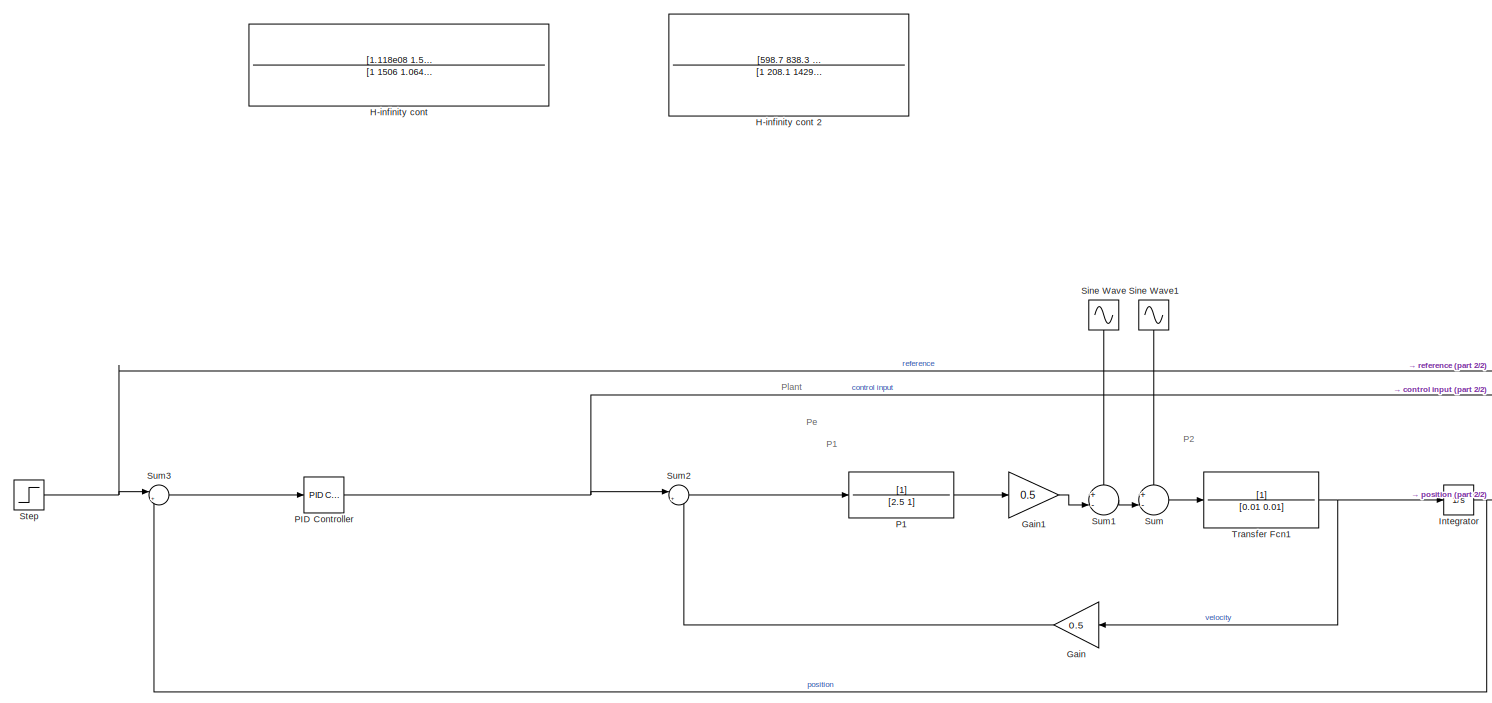
[diagram: root canvas - part 1/2, most of the canvas]
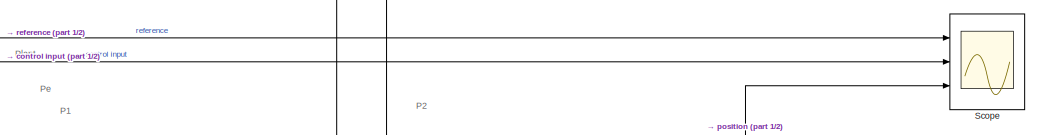
[diagram: root canvas - part 2/2, middle right region]
MODEL slx_c39e41bcf37e
KIND model
CONFIG AbsTol = auto
CONFIG EnableMultiTasking = off
CONFIG FixedStep = auto
CONFIG MaxStep = auto
CONFIG MinStep = auto
CONFIG RelTol = 1e-3
CONFIG SampleTimeConstraint = Unconstrained
CONFIG SolverName = VariableStepAuto
CONFIG StartTime = 0.0
CONFIG StopTime = 100
BLOCK [Gain] Gain
  Gain = 0.5
  NameLocation = top
BLOCK [Gain] Gain1
  Gain = 0.5
BLOCK [TransferFcn] H-infinity cont 
  Denominator = [1 1506 1.064e06 4.21e08 5.986e06]
  Numerator = [1.118e08 1.566e08 1.163e09 154.9]
BLOCK [TransferFcn] H-infinity cont 2
  Denominator = [1 208.1 1429 6410 90.86]
  Numerator = [598.7 838.3 6227 0.0008333]
BLOCK [Integrator] Integrator
  Ports = [1, 1]
BLOCK [TransferFcn] P1
  Denominator = [2.5 1]
BLOCK [Reference] PID Controller  REF=slpidlib/PID Controller
  Ports = [1, 1]
  SourceBlock = slpidlib/PID Controller
  SourceProductBaseCode = SL
  SourceType = PID 1dof
BLOCK [Scope] Scope
  Floating = off
  NumInputPorts = 3
  Ports = [3]
  ScopeSpecificationString = Simulink.scopes.TimeScopeBlockCfg('CurrentConfiguration', extmgr.ConfigurationSet(extmgr.Configuration('Core','General UI',true,'FigureColor',[0 0 0]),extmgr.Configuration('Core','Source UI',true),extmgr.Configuration('Sources','WiredSimulink',true),extmgr.Configuration('Visuals','Time Domain',true,'SerializedDisplays',{struct('MinYLimReal','-6.30649','MaxYLimReal','4.63536','YLabelReal','','MinYL...<+1975ch>
BLOCK [Sin] Sine Wave
  NameLocation = left
  Ports = [0, 1]
  SampleTime = 0
BLOCK [Sin] Sine Wave1
  NameLocation = left
  Ports = [0, 1]
  SampleTime = 0
BLOCK [Step] Step
  SampleTime = 0
BLOCK [Sum] Sum
  Inputs = +-|
  Ports = [2, 1]
BLOCK [Sum] Sum1
  Inputs = +-|
  Ports = [2, 1]
BLOCK [Sum] Sum2
  Inputs = |+-
  Ports = [2, 1]
BLOCK [Sum] Sum3
  Inputs = |+-
  Ports = [2, 1]
BLOCK [TransferFcn] Transfer Fcn1
  Denominator = [0.01 0.01]
ANNOTATION (root): P1
ANNOTATION (root): P2
ANNOTATION (root): Pe
ANNOTATION (root): Plant
LINE Gain1:1 -> Sum1:2
LINE Gain:1 -> Sum2:2
NET Integrator:1 -> Scope:3, Sum3:2
LINE P1:1 -> Gain1:1
NET PID Controller:1 -> Scope:2, Sum2:1
LINE Sine Wave1:1 -> Sum:1
LINE Sine Wave:1 -> Sum1:1
NET Step:1 -> Scope:1, Sum3:1
LINE Sum1:1 -> Sum:2
LINE Sum2:1 -> P1:1
LINE Sum3:1 -> PID Controller:1
LINE Sum:1 -> Transfer Fcn1:1
NET Transfer Fcn1:1 -> Gain:1, Integrator:1
note: NET lines group one-source signal fan-out (src -> all destinations, sorted); 1:1 wires keep LINE
